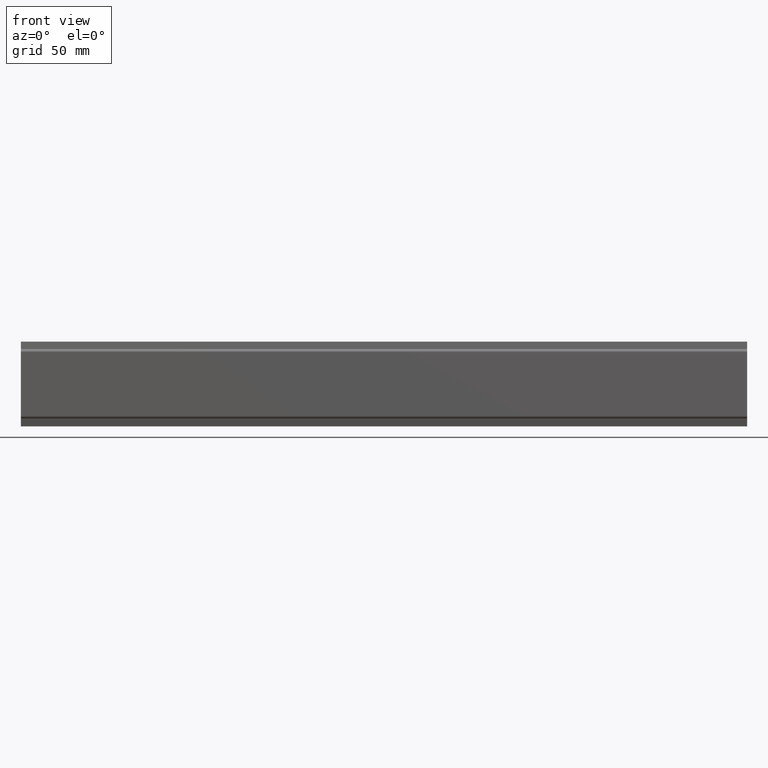
[diagram: clean part render]
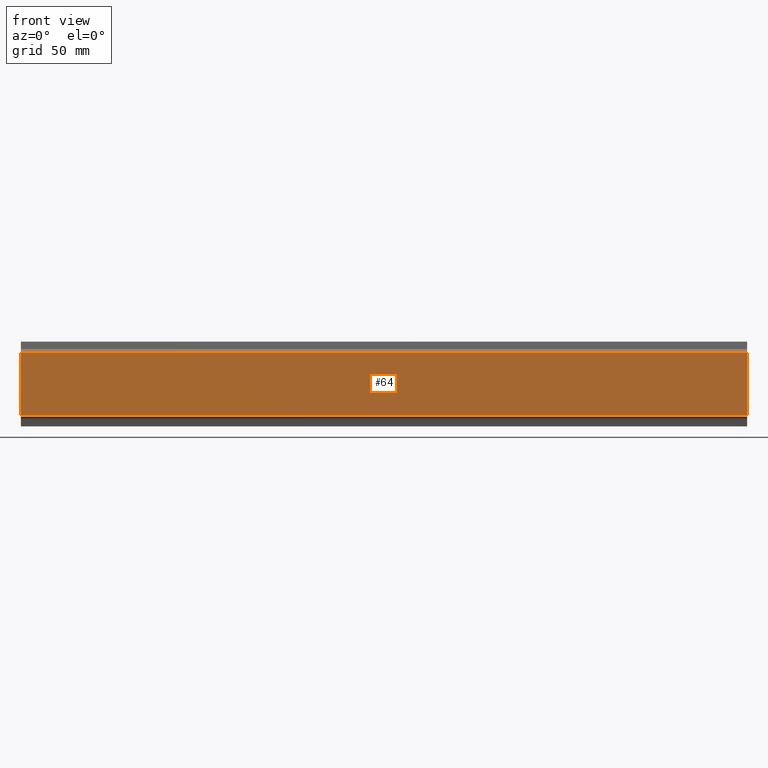
[diagram: same view with one face highlighted and labeled with its STEP entity id]
A machine part, front view. The second image highlights one B-rep face of the part: STEP entity #64.
In plain terms, the highlighted planar face has unit normal (-0, 1, 0).
Its self-contained STEP definition (entity closure, byte-faithful):
#19 = EDGE_CURVE ( 'NONE', #216, #222, #395, .T. ) ;
#24 = EDGE_CURVE ( 'NONE', #222, #219, #396, .T. ) ;
#44 = EDGE_CURVE ( 'NONE', #230, #219, #465, .T. ) ;
#49 = EDGE_CURVE ( 'NONE', #216, #230, #477, .T. ) ;
#64 = ADVANCED_FACE ( 'NONE', ( #533 ), #552, .F. ) ;
#103 = CARTESIAN_POINT ( 'NONE',  ( 300.0000000000000000, -1.110223024625156500E-013, 26.29999999999999000 ) ) ;
#110 = CARTESIAN_POINT ( 'NONE',  ( 300.0000000000000000, -5.551115123125782700E-014, 1.836970198720929400E-016 ) ) ;
#115 = CARTESIAN_POINT ( 'NONE',  ( 0.0000000000000000000, -1.110223024625156500E-013, 26.29999999999999000 ) ) ;
#139 = CARTESIAN_POINT ( 'NONE',  ( 0.0000000000000000000, -5.551115123125782700E-014, 1.836970198720929400E-016 ) ) ;
#189 = EDGE_LOOP ( 'NONE', ( #298, #280, #268, #272 ) ) ;
#216 = VERTEX_POINT ( 'NONE', #103 ) ;
#219 = VERTEX_POINT ( 'NONE', #139 ) ;
#222 = VERTEX_POINT ( 'NONE', #110 ) ;
#230 = VERTEX_POINT ( 'NONE', #115 ) ;
#268 = ORIENTED_EDGE ( 'NONE', *, *, #19, .F. ) ;
#272 = ORIENTED_EDGE ( 'NONE', *, *, #49, .T. ) ;
#280 = ORIENTED_EDGE ( 'NONE', *, *, #24, .F. ) ;
#298 = ORIENTED_EDGE ( 'NONE', *, *, #44, .T. ) ;
#387 = CARTESIAN_POINT ( 'NONE',  ( 300.0000000000000000, -1.110223024625156500E-013, 26.29999999999999000 ) ) ;
#395 = LINE ( 'NONE', #387, #675 ) ;
#396 = LINE ( 'NONE', #427, #715 ) ;
#398 = DIRECTION ( 'NONE',  ( 0.0000000000000000000, 0.0000000000000000000, -1.000000000000000000 ) ) ;
#427 = CARTESIAN_POINT ( 'NONE',  ( 300.0000000000000000, -5.551115123125782700E-014, 1.836970198720929400E-016 ) ) ;
#457 = DIRECTION ( 'NONE',  ( -1.000000000000000000, -0.0000000000000000000, -0.0000000000000000000 ) ) ;
#465 = LINE ( 'NONE', #489, #703 ) ;
#477 = LINE ( 'NONE', #500, #711 ) ;
#489 = CARTESIAN_POINT ( 'NONE',  ( 0.0000000000000000000, -1.110223024625156500E-013, 26.29999999999999000 ) ) ;
#496 = DIRECTION ( 'NONE',  ( 0.0000000000000000000, 0.0000000000000000000, -1.000000000000000000 ) ) ;
#500 = CARTESIAN_POINT ( 'NONE',  ( 300.0000000000000000, -1.110223024625156500E-013, 26.29999999999999000 ) ) ;
#508 = DIRECTION ( 'NONE',  ( -1.000000000000000000, -0.0000000000000000000, -0.0000000000000000000 ) ) ;
#515 = DIRECTION ( 'NONE',  ( 0.0000000000000000000, -0.0000000000000000000, 1.000000000000000000 ) ) ;
#533 = FACE_OUTER_BOUND ( 'NONE', #189, .T. ) ;
#534 = DIRECTION ( 'NONE',  ( -0.0000000000000000000, 1.000000000000000000, 0.0000000000000000000 ) ) ;
#542 = CARTESIAN_POINT ( 'NONE',  ( 300.0000000000000000, -1.110223024625156500E-013, 26.29999999999999000 ) ) ;
#552 = PLANE ( 'NONE',  #716 ) ;
#675 = VECTOR ( 'NONE', #398, 1000.000000000000000 ) ;
#703 = VECTOR ( 'NONE', #496, 1000.000000000000000 ) ;
#711 = VECTOR ( 'NONE', #508, 1000.000000000000000 ) ;
#715 = VECTOR ( 'NONE', #457, 1000.000000000000000 ) ;
#716 = AXIS2_PLACEMENT_3D ( 'NONE', #542, #534, #515 ) ;